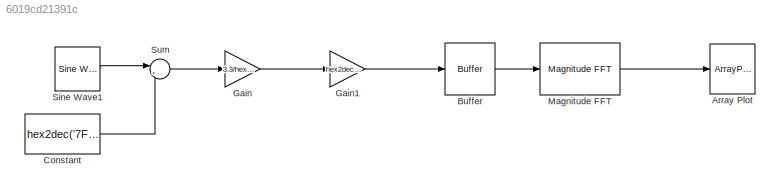
MODEL slx_6019cd21391c
KIND model
CONFIG AbsTol = auto
CONFIG EnableMultiTasking = off
CONFIG FixedStep = auto
CONFIG MaxStep = auto
CONFIG MinStep = auto
CONFIG RelTol = 1e-3
CONFIG SampleTimeConstraint = Unconstrained
CONFIG Solver = VariableStepAuto
CONFIG SolverName = VariableStepAuto
CONFIG StartTime = 0.0
CONFIG StopTime = 251/1004+1/192000
BLOCK [ArrayPlot] Array Plot
  Ports = [1]
  ScopeSpecificationString = dsp.scopes.ArrayPlotBlockSpecification('CurrentConfiguration', extmgr.ConfigurationSet(extmgr.Configuration('Core','General UI',true),extmgr.Configuration('Core','Source UI',true),extmgr.Configuration('Sources','WiredSimulink',true),extmgr.Configuration('Visuals','Array Plot',true,'DisplayPropertyDefaults',struct('MinYLimReal','-9.03262e+12','MaxYLimReal','8.12936e+13','YLabelReal','Amplitude','Mi...<+1465ch>
BLOCK [Buffer] Buffer
  N = 4096
  OutputFrames = off
BLOCK [Constant] Constant
  Value = hex2dec('7FF')
BLOCK [Gain] Gain
  Gain = 3.3/hex2dec('FFF')
  OutDataTypeStr = Inherit: Inherit via internal rule
  ParamDataTypeStr = Inherit: Inherit via internal rule
  SaturateOnIntegerOverflow = off
BLOCK [Gain] Gain1
  Gain = hex2dec('FFF')/3.3
  OutDataTypeStr = Inherit: Inherit via internal rule
  ParamDataTypeStr = Inherit: Inherit via internal rule
  SaturateOnIntegerOverflow = off
BLOCK [Reference] Magnitude FFT  REF=dspspect3/Magnitude
FFT
  Ports = [1, 1]
  SourceBlock = dspspect3/Magnitude\nFFT
  SourceProductBaseCode = DS
  SourceProductName = DSP System Toolbox
  SourceType = Magnitude FFT
BLOCK [Reference] Sine Wave1  REF=dspsrcs4/Sine Wave
  Ports = [0, 1]
  SourceBlock = dspsrcs4/Sine Wave
  SourceProductBaseCode = DS
  SourceProductName = DSP System Toolbox
  SourceType = Sine Wave
BLOCK [Sum] Sum
  IconShape = round
  InputSameDT = off
  Inputs = |++
  OutDataTypeStr = Inherit: Inherit via internal rule
  Ports = [2, 1]
  SaturateOnIntegerOverflow = off
LINE Buffer:1 -> Magnitude FFT:1
LINE Constant:1 -> Sum:2
LINE Gain1:1 -> Buffer:1
LINE Gain:1 -> Gain1:1
LINE Magnitude FFT:1 -> Array Plot:1
LINE Sine Wave1:1 -> Sum:1
LINE Sum:1 -> Gain:1
